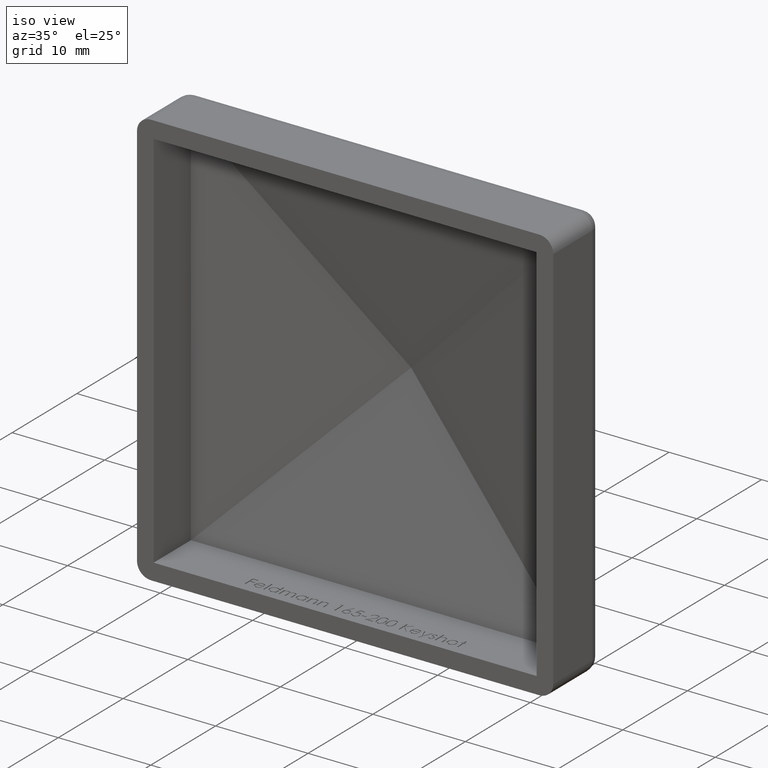
[diagram: clean part render]
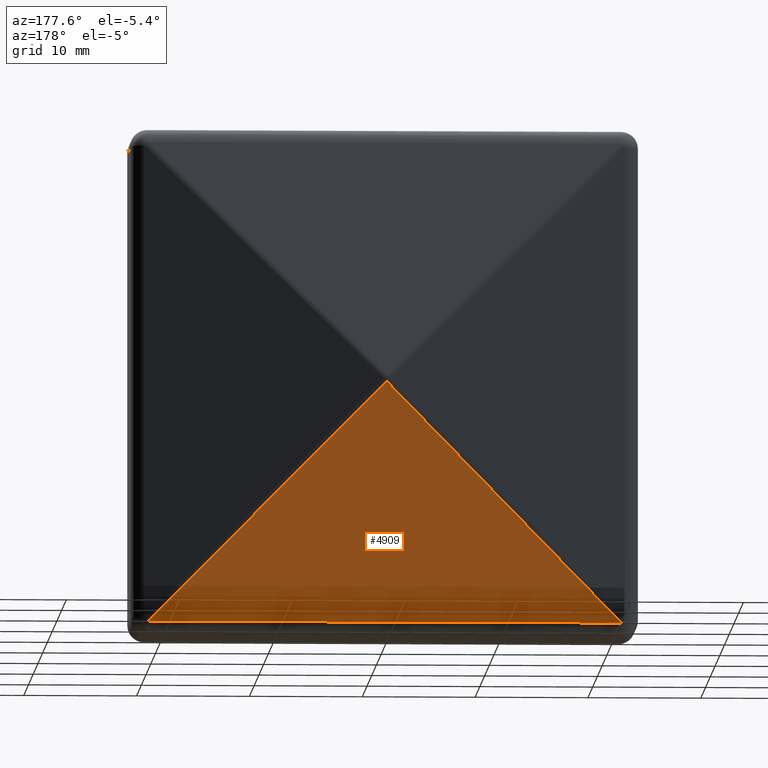
[diagram: tour spotlight — one face highlighted and labeled with its STEP entity id]
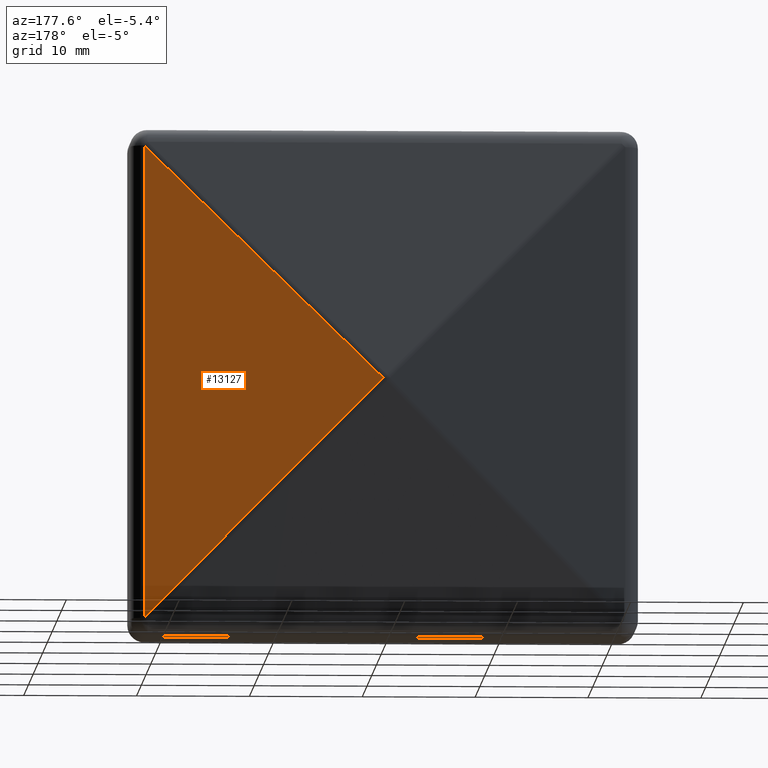
[diagram: tour spotlight — one face highlighted and labeled with its STEP entity id]
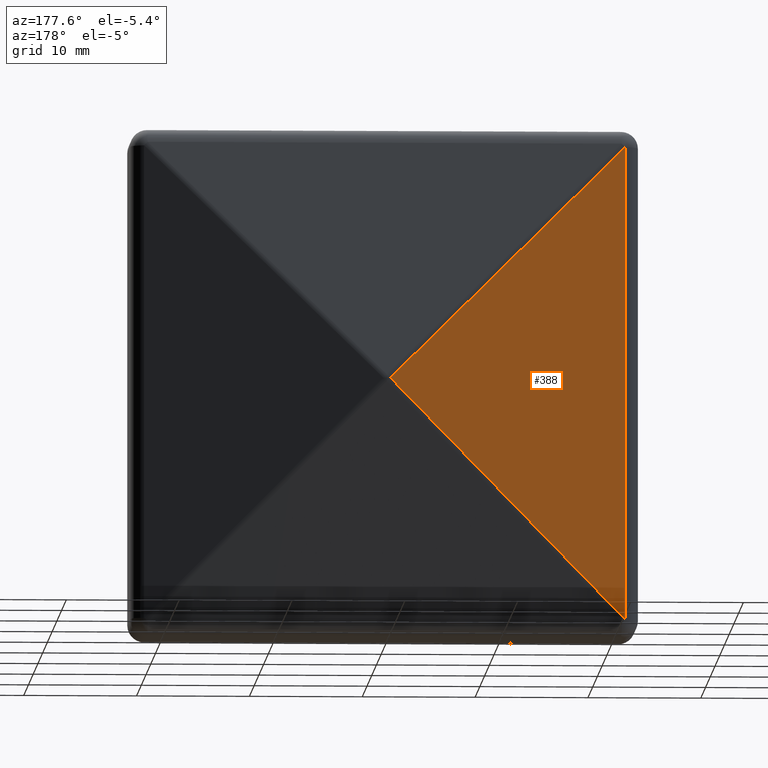
[diagram: tour spotlight — one face highlighted and labeled with its STEP entity id]
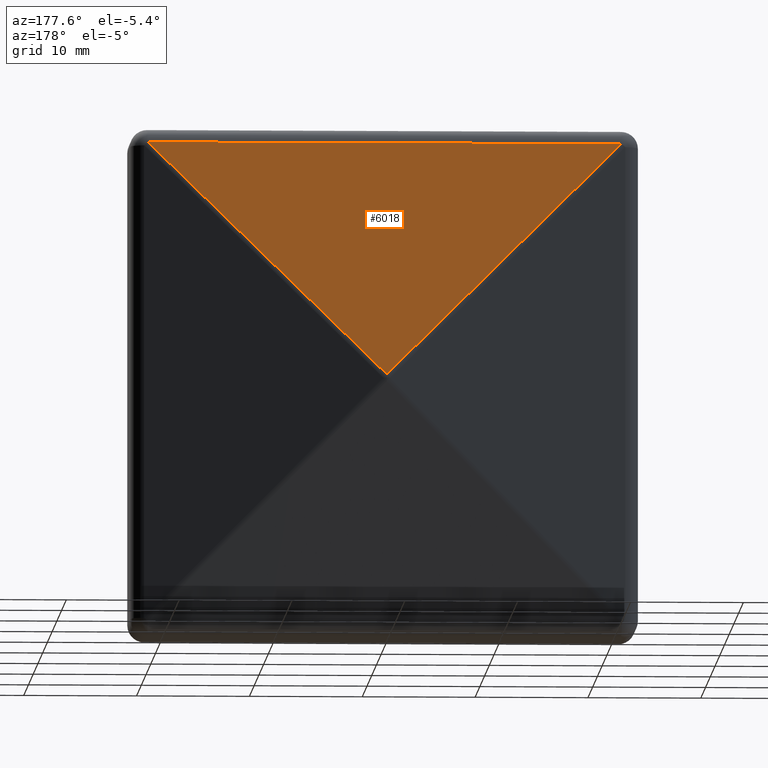
[diagram: tour spotlight — one face highlighted and labeled with its STEP entity id]
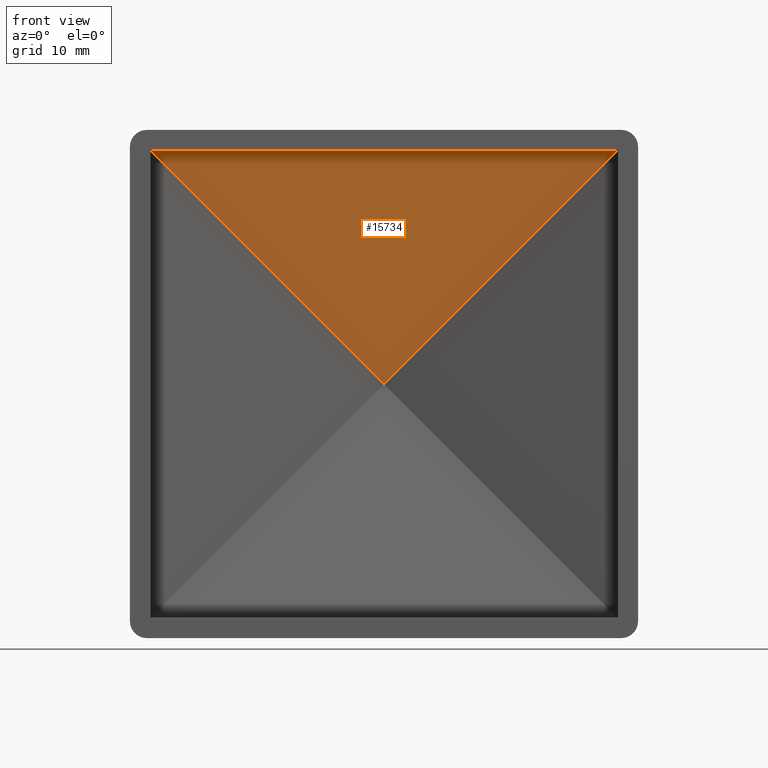
[diagram: tour spotlight — one face highlighted and labeled with its STEP entity id]
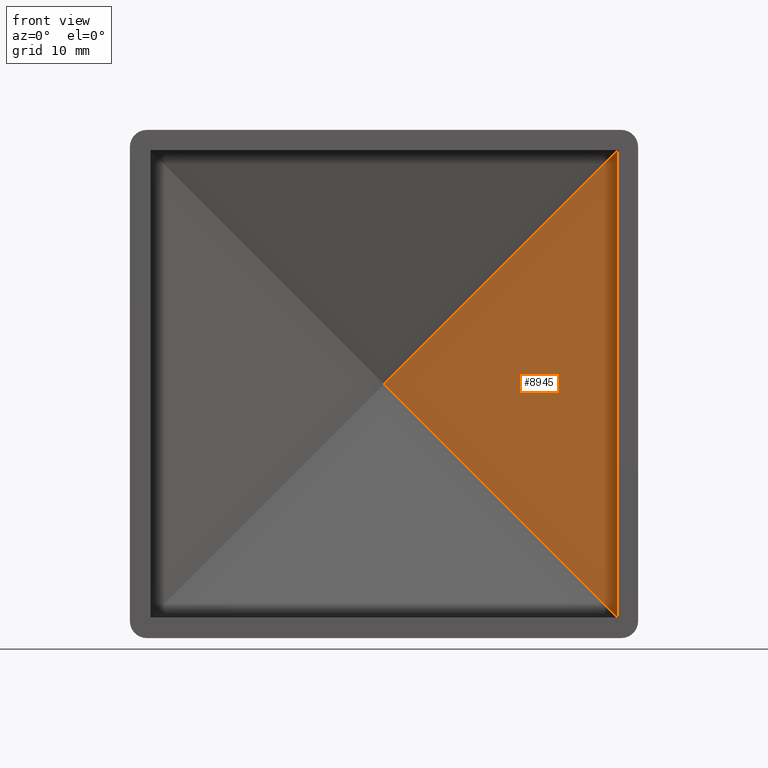
[diagram: tour spotlight — one face highlighted and labeled with its STEP entity id]
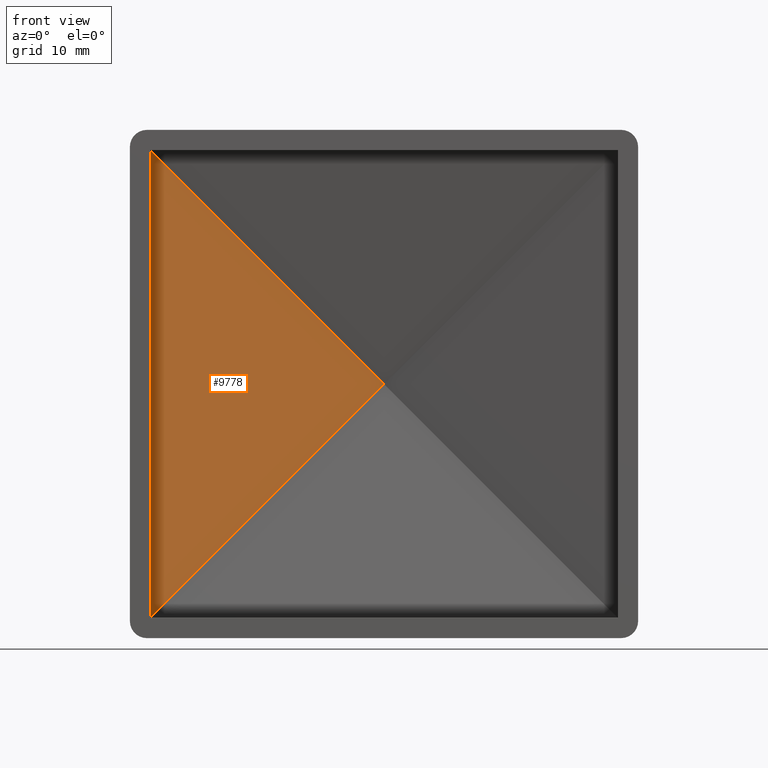
[diagram: tour spotlight — one face highlighted and labeled with its STEP entity id]
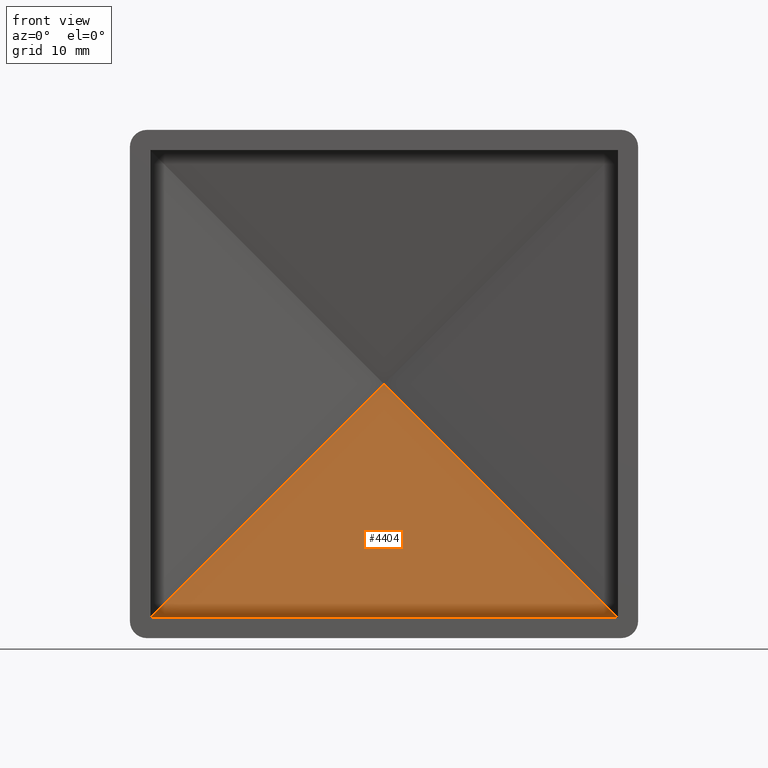
[diagram: tour spotlight — one face highlighted and labeled with its STEP entity id]
A machine part: a face-by-face anatomy tour. The part has 322 B-rep faces; the first image is the clean iso view, then the 8 largest visible faces are spotlighted one at a time (largest first), each with its STEP entity span.

Face 1 — auxiliary view, entity #4909. In plain terms, the highlighted planar face has unit normal (-0, 0.9778, -0.2095).
Definition (entity closure, byte-faithful):
#290 = VERTEX_POINT ( 'NONE', #12041 ) ;
#1507 = ORIENTED_EDGE ( 'NONE', *, *, #2637, .T. ) ;
#1525 = CARTESIAN_POINT ( 'NONE',  ( 9.897755610972566800, 14.08765125203881000, 9.583461977876254400 ) ) ;
#2637 = EDGE_CURVE ( 'NONE', #13440, #8784, #9553, .T. ) ;
#2821 = DIRECTION ( 'NONE',  ( -1.000000000000000000, -0.0000000000000000000, 2.220446049250313100E-016 ) ) ;
#3248 = AXIS2_PLACEMENT_3D ( 'NONE', #10526, #5503, #6842 ) ;
#3952 = VECTOR ( 'NONE', #9826, 1000.000000000000100 ) ;
#4052 = FACE_OUTER_BOUND ( 'NONE', #15610, .T. ) ;
#4506 = ORIENTED_EDGE ( 'NONE', *, *, #5343, .T. ) ;
#4909 = ADVANCED_FACE ( 'NONE', ( #4052 ), #15564, .T. ) ;
#5343 = EDGE_CURVE ( 'NONE', #290, #13440, #16321, .T. ) ;
#5503 = DIRECTION ( 'NONE',  ( -4.652480372754863700E-017, 0.9778024140774096400, -0.2095290887308734800 ) ) ;
#5961 = VECTOR ( 'NONE', #2821, 1000.000000000000000 ) ;
#6385 = CARTESIAN_POINT ( 'NONE',  ( 20.99999999999998900, 7.466703621116119300, -21.31429363309631200 ) ) ;
#6842 = DIRECTION ( 'NONE',  ( 0.0000000000000000000, 0.2095290887308734800, 0.9778024140774096400 ) ) ;
#7732 = DIRECTION ( 'NONE',  ( 0.6991266372144912000, 0.1498128508316767000, 0.6991266372144912000 ) ) ;
#8154 = VECTOR ( 'NONE', #7732, 1000.000000000000100 ) ;
#8784 = VERTEX_POINT ( 'NONE', #6385 ) ;
#8887 = CARTESIAN_POINT ( 'NONE',  ( 6.938893903907228400E-015, 11.96670362111611800, -0.3142936330963099800 ) ) ;
#9553 = LINE ( 'NONE', #16419, #3952 ) ;
#9826 = DIRECTION ( 'NONE',  ( 0.6991266372144909800, -0.1498128508316766700, -0.6991266372144914200 ) ) ;
#10419 = CARTESIAN_POINT ( 'NONE',  ( 22.49999999999999600, 7.466703621116119300, -21.31429363309631200 ) ) ;
#10526 = CARTESIAN_POINT ( 'NONE',  ( 22.50000000000000000, 11.50572801136002000, -2.465513145291437600 ) ) ;
#10811 = ORIENTED_EDGE ( 'NONE', *, *, #14017, .T. ) ;
#12041 = CARTESIAN_POINT ( 'NONE',  ( -20.99999999999997500, 7.466703621116119300, -21.31429363309630200 ) ) ;
#13440 = VERTEX_POINT ( 'NONE', #8887 ) ;
#14017 = EDGE_CURVE ( 'NONE', #8784, #290, #14758, .T. ) ;
#14758 = LINE ( 'NONE', #10419, #5961 ) ;
#15564 = PLANE ( 'NONE',  #3248 ) ;
#15610 = EDGE_LOOP ( 'NONE', ( #10811, #4506, #1507 ) ) ;
#16321 = LINE ( 'NONE', #1525, #8154 ) ;
#16419 = CARTESIAN_POINT ( 'NONE',  ( 21.15361983064058300, 7.433785085978849200, -21.46791346373691000 ) ) ;

Face 2 — auxiliary view, entity #13127. In plain terms, the highlighted planar face has unit normal (-0.2095, -0.9778, 0).
Definition (entity closure, byte-faithful):
#601 = CARTESIAN_POINT ( 'NONE',  ( 0.3142936330963099800, 11.96670362111611800, -3.469446951953614200E-015 ) ) ;
#1054 = DIRECTION ( 'NONE',  ( 0.6991266372144912000, -0.1498128508316767000, 0.6991266372144912000 ) ) ;
#1366 = ORIENTED_EDGE ( 'NONE', *, *, #2317, .T. ) ;
#1699 = EDGE_CURVE ( 'NONE', #14411, #10346, #3817, .T. ) ;
#2004 = EDGE_CURVE ( 'NONE', #2891, #10346, #10600, .T. ) ;
#2317 = EDGE_CURVE ( 'NONE', #14411, #2891, #12780, .T. ) ;
#2891 = VERTEX_POINT ( 'NONE', #601 ) ;
#3064 = CARTESIAN_POINT ( 'NONE',  ( 21.31429363309630900, 7.466703621116119300, -22.50000000000003600 ) ) ;
#3634 = DIRECTION ( 'NONE',  ( -0.6991266372144910900, 0.1498128508316766700, 0.6991266372144914200 ) ) ;
#3817 = LINE ( 'NONE', #3064, #13826 ) ;
#4016 = CARTESIAN_POINT ( 'NONE',  ( 21.31429363309630900, 7.466703621116119300, 20.99999999999999600 ) ) ;
#4584 = AXIS2_PLACEMENT_3D ( 'NONE', #4721, #11138, #13495 ) ;
#4721 = CARTESIAN_POINT ( 'NONE',  ( 2.465513145291432300, 11.50572801136002000, -22.50000000000003600 ) ) ;
#5318 = CARTESIAN_POINT ( 'NONE',  ( 21.31429363309630900, 7.466703621116119300, -21.00000000000000400 ) ) ;
#5804 = ORIENTED_EDGE ( 'NONE', *, *, #2004, .T. ) ;
#6072 = EDGE_LOOP ( 'NONE', ( #1366, #5804, #8551 ) ) ;
#6371 = VECTOR ( 'NONE', #3634, 1000.000000000000100 ) ;
#7295 = PLANE ( 'NONE',  #4584 ) ;
#8190 = FACE_OUTER_BOUND ( 'NONE', #6072, .T. ) ;
#8418 = VECTOR ( 'NONE', #1054, 1000.000000000000100 ) ;
#8551 = ORIENTED_EDGE ( 'NONE', *, *, #1699, .F. ) ;
#8565 = CARTESIAN_POINT ( 'NONE',  ( 0.4679134637369022900, 11.93378508597884700, -0.1536198306405986400 ) ) ;
#10346 = VERTEX_POINT ( 'NONE', #4016 ) ;
#10600 = LINE ( 'NONE', #15217, #8418 ) ;
#11138 = DIRECTION ( 'NONE',  ( -0.2095290887308734800, -0.9778024140774095300, 0.0000000000000000000 ) ) ;
#12780 = LINE ( 'NONE', #8565, #6371 ) ;
#13127 = ADVANCED_FACE ( 'NONE', ( #8190 ), #7295, .F. ) ;
#13495 = DIRECTION ( 'NONE',  ( 0.9778024140774095300, -0.2095290887308734800, 0.0000000000000000000 ) ) ;
#13826 = VECTOR ( 'NONE', #15857, 1000.000000000000000 ) ;
#14411 = VERTEX_POINT ( 'NONE', #5318 ) ;
#15217 = CARTESIAN_POINT ( 'NONE',  ( -9.583461977876277500, 14.08765125203881600, -9.897755610972581100 ) ) ;
#15857 = DIRECTION ( 'NONE',  ( -0.0000000000000000000, -0.0000000000000000000, 1.000000000000000000 ) ) ;

Face 3 — auxiliary view, entity #388. In plain terms, the highlighted planar face has unit normal (-0.2095, 0.9778, 0).
Definition (entity closure, byte-faithful):
#183 = CARTESIAN_POINT ( 'NONE',  ( -21.31429363309630900, 7.466703621116119300, -20.99999999999999300 ) ) ;
#388 = ADVANCED_FACE ( 'NONE', ( #11070 ), #8625, .T. ) ;
#571 = VECTOR ( 'NONE', #4943, 1000.000000000000100 ) ;
#944 = DIRECTION ( 'NONE',  ( 0.6991266372144910900, 0.1498128508316766700, -0.6991266372144914200 ) ) ;
#996 = DIRECTION ( 'NONE',  ( -0.2095290887308734800, 0.9778024140774095300, 0.0000000000000000000 ) ) ;
#1764 = EDGE_LOOP ( 'NONE', ( #13207, #14803, #8807 ) ) ;
#4418 = CARTESIAN_POINT ( 'NONE',  ( -21.31429363309630900, 7.466703621116119300, 21.00000000000001100 ) ) ;
#4781 = DIRECTION ( 'NONE',  ( -0.9778024140774095300, -0.2095290887308734800, 0.0000000000000000000 ) ) ;
#4943 = DIRECTION ( 'NONE',  ( -0.6991266372144912000, -0.1498128508316767000, -0.6991266372144912000 ) ) ;
#4958 = CARTESIAN_POINT ( 'NONE',  ( -0.4679134637368916900, 11.93378508597885100, 0.1536198306405969200 ) ) ;
#5591 = CARTESIAN_POINT ( 'NONE',  ( -0.3142936330963099800, 11.96670362111611800, 1.040834085586084300E-014 ) ) ;
#6112 = CARTESIAN_POINT ( 'NONE',  ( -12.41155049095168500, 9.374434294432822100, -12.09725685785538300 ) ) ;
#6380 = LINE ( 'NONE', #6112, #571 ) ;
#6816 = VERTEX_POINT ( 'NONE', #4418 ) ;
#6844 = AXIS2_PLACEMENT_3D ( 'NONE', #15033, #996, #4781 ) ;
#8625 = PLANE ( 'NONE',  #6844 ) ;
#8807 = ORIENTED_EDGE ( 'NONE', *, *, #8844, .T. ) ;
#8844 = EDGE_CURVE ( 'NONE', #14050, #6816, #15200, .T. ) ;
#10509 = DIRECTION ( 'NONE',  ( -0.0000000000000000000, -0.0000000000000000000, 1.000000000000000000 ) ) ;
#11070 = FACE_OUTER_BOUND ( 'NONE', #1764, .T. ) ;
#12810 = VECTOR ( 'NONE', #10509, 1000.000000000000000 ) ;
#12919 = CARTESIAN_POINT ( 'NONE',  ( -21.31429363309630900, 7.466703621116119300, -22.50000000000003600 ) ) ;
#13207 = ORIENTED_EDGE ( 'NONE', *, *, #15794, .T. ) ;
#13269 = EDGE_CURVE ( 'NONE', #13674, #14050, #6380, .T. ) ;
#13674 = VERTEX_POINT ( 'NONE', #5591 ) ;
#14050 = VERTEX_POINT ( 'NONE', #183 ) ;
#14803 = ORIENTED_EDGE ( 'NONE', *, *, #13269, .T. ) ;
#15033 = CARTESIAN_POINT ( 'NONE',  ( -2.465513145291432300, 11.50572801136002000, -22.50000000000003600 ) ) ;
#15200 = LINE ( 'NONE', #12919, #12810 ) ;
#15536 = VECTOR ( 'NONE', #944, 1000.000000000000100 ) ;
#15794 = EDGE_CURVE ( 'NONE', #6816, #13674, #16327, .T. ) ;
#16327 = LINE ( 'NONE', #4958, #15536 ) ;

Face 4 — auxiliary view, entity #6018. In plain terms, the highlighted planar face has unit normal (-0, -0.9778, -0.2095).
Definition (entity closure, byte-faithful):
#42 = EDGE_CURVE ( 'NONE', #7215, #4459, #11495, .T. ) ;
#430 = DIRECTION ( 'NONE',  ( -0.6991266372144909800, -0.1498128508316766700, 0.6991266372144914200 ) ) ;
#777 = CARTESIAN_POINT ( 'NONE',  ( 22.50000000000000000, 11.50572801136002000, 2.465513145291427400 ) ) ;
#892 = PLANE ( 'NONE',  #1312 ) ;
#1094 = EDGE_CURVE ( 'NONE', #7215, #6229, #13067, .T. ) ;
#1312 = AXIS2_PLACEMENT_3D ( 'NONE', #777, #4750, #13678 ) ;
#1845 = CARTESIAN_POINT ( 'NONE',  ( -21.15361983064056200, 7.433785085978851900, 21.46791346373689500 ) ) ;
#2516 = EDGE_LOOP ( 'NONE', ( #2724, #14309, #8289 ) ) ;
#2724 = ORIENTED_EDGE ( 'NONE', *, *, #42, .T. ) ;
#2779 = DIRECTION ( 'NONE',  ( -0.6991266372144912000, 0.1498128508316767000, -0.6991266372144912000 ) ) ;
#3685 = EDGE_CURVE ( 'NONE', #4459, #6229, #12246, .T. ) ;
#4459 = VERTEX_POINT ( 'NONE', #11632 ) ;
#4750 = DIRECTION ( 'NONE',  ( -4.652480372754863700E-017, -0.9778024140774096400, -0.2095290887308734800 ) ) ;
#5293 = VECTOR ( 'NONE', #7694, 1000.000000000000000 ) ;
#6018 = ADVANCED_FACE ( 'NONE', ( #7643 ), #892, .F. ) ;
#6202 = CARTESIAN_POINT ( 'NONE',  ( 20.99999999999998900, 7.466703621116119300, 21.31429363309630500 ) ) ;
#6229 = VERTEX_POINT ( 'NONE', #11656 ) ;
#6708 = VECTOR ( 'NONE', #2779, 1000.000000000000100 ) ;
#7051 = VECTOR ( 'NONE', #430, 1000.000000000000100 ) ;
#7215 = VERTEX_POINT ( 'NONE', #6202 ) ;
#7643 = FACE_OUTER_BOUND ( 'NONE', #2516, .T. ) ;
#7694 = DIRECTION ( 'NONE',  ( -1.000000000000000000, -0.0000000000000000000, 2.220446049250313100E-016 ) ) ;
#7864 = CARTESIAN_POINT ( 'NONE',  ( 22.50000000000000400, 7.466703621116119300, 21.31429363309630500 ) ) ;
#8289 = ORIENTED_EDGE ( 'NONE', *, *, #1094, .F. ) ;
#11495 = LINE ( 'NONE', #15107, #6708 ) ;
#11632 = CARTESIAN_POINT ( 'NONE',  ( 3.469446951953614200E-015, 11.96670362111611800, 0.3142936330963099800 ) ) ;
#11656 = CARTESIAN_POINT ( 'NONE',  ( -20.99999999999997500, 7.466703621116119300, 21.31429363309631600 ) ) ;
#12246 = LINE ( 'NONE', #1845, #7051 ) ;
#13067 = LINE ( 'NONE', #7864, #5293 ) ;
#13678 = DIRECTION ( 'NONE',  ( 0.0000000000000000000, 0.2095290887308734800, -0.9778024140774096400 ) ) ;
#14309 = ORIENTED_EDGE ( 'NONE', *, *, #3685, .T. ) ;
#15107 = CARTESIAN_POINT ( 'NONE',  ( 12.09725685785535300, 9.374434294432823800, 12.41155049095167400 ) ) ;

Face 5 — front view, entity #15734. In plain terms, the highlighted planar face has unit normal (-0, -0.9778, -0.2095).
Definition (entity closure, byte-faithful):
#40 = ORIENTED_EDGE ( 'NONE', *, *, #11669, .T. ) ;
#274 = EDGE_CURVE ( 'NONE', #5621, #15442, #13892, .T. ) ;
#1110 = EDGE_LOOP ( 'NONE', ( #14321, #40, #1483 ) ) ;
#1415 = DIRECTION ( 'NONE',  ( 0.6991266372144912000, -0.1498128508316766700, 0.6991266372144912000 ) ) ;
#1483 = ORIENTED_EDGE ( 'NONE', *, *, #274, .T. ) ;
#2434 = LINE ( 'NONE', #12690, #13011 ) ;
#3287 = PLANE ( 'NONE',  #15197 ) ;
#3534 = CARTESIAN_POINT ( 'NONE',  ( 0.0000000000000000000, 10.19318954864408300, 0.0000000000000000000 ) ) ;
#3563 = DIRECTION ( 'NONE',  ( -4.652480372754863700E-017, -0.9778024140774096400, -0.2095290887308734800 ) ) ;
#4025 = DIRECTION ( 'NONE',  ( -0.6991266372144909800, -0.1498128508316766700, 0.6991266372144914200 ) ) ;
#4309 = VERTEX_POINT ( 'NONE', #3534 ) ;
#4903 = VECTOR ( 'NONE', #14772, 1000.000000000000000 ) ;
#5621 = VERTEX_POINT ( 'NONE', #7322 ) ;
#7322 = CARTESIAN_POINT ( 'NONE',  ( 20.69999999999998200, 5.757475262929799200, 20.69999999999998900 ) ) ;
#7399 = CARTESIAN_POINT ( 'NONE',  ( -20.69999999999998200, 5.757475262929799200, 20.70000000000000300 ) ) ;
#7781 = LINE ( 'NONE', #7783, #12570 ) ;
#7783 = CARTESIAN_POINT ( 'NONE',  ( -9.929890371463733000, 12.32102319967202500, -9.929890371463724100 ) ) ;
#8855 = EDGE_CURVE ( 'NONE', #4309, #15442, #2434, .T. ) ;
#10343 = FACE_OUTER_BOUND ( 'NONE', #1110, .T. ) ;
#11205 = DIRECTION ( 'NONE',  ( 0.0000000000000000000, 0.2095290887308734800, -0.9778024140774096400 ) ) ;
#11255 = CARTESIAN_POINT ( 'NONE',  ( 22.50000000000000000, 9.745683666020685400, 2.088360785575855200 ) ) ;
#11669 = EDGE_CURVE ( 'NONE', #4309, #5621, #7781, .T. ) ;
#12570 = VECTOR ( 'NONE', #1415, 1000.000000000000100 ) ;
#12690 = CARTESIAN_POINT ( 'NONE',  ( 9.929890371463731200, 12.32102319967202500, -9.929890371463731200 ) ) ;
#13011 = VECTOR ( 'NONE', #4025, 1000.000000000000100 ) ;
#13334 = CARTESIAN_POINT ( 'NONE',  ( -22.50000000000000700, 5.757475262929804500, 20.69999999999997800 ) ) ;
#13892 = LINE ( 'NONE', #13334, #4903 ) ;
#14321 = ORIENTED_EDGE ( 'NONE', *, *, #8855, .F. ) ;
#14772 = DIRECTION ( 'NONE',  ( -1.000000000000000000, 4.758098676964957000E-017, 0.0000000000000000000 ) ) ;
#15197 = AXIS2_PLACEMENT_3D ( 'NONE', #11255, #3563, #11205 ) ;
#15442 = VERTEX_POINT ( 'NONE', #7399 ) ;
#15734 = ADVANCED_FACE ( 'NONE', ( #10343 ), #3287, .T. ) ;

Face 6 — front view, entity #8945. In plain terms, the highlighted planar face has unit normal (-0.2095, -0.9778, 0).
Definition (entity closure, byte-faithful):
#1415 = DIRECTION ( 'NONE',  ( 0.6991266372144912000, -0.1498128508316766700, 0.6991266372144912000 ) ) ;
#2024 = FACE_OUTER_BOUND ( 'NONE', #7291, .T. ) ;
#3534 = CARTESIAN_POINT ( 'NONE',  ( 0.0000000000000000000, 10.19318954864408300, 0.0000000000000000000 ) ) ;
#3671 = ORIENTED_EDGE ( 'NONE', *, *, #11040, .T. ) ;
#3901 = CARTESIAN_POINT ( 'NONE',  ( 20.70000000000000300, 5.757475262929793800, -20.70000000000002400 ) ) ;
#4309 = VERTEX_POINT ( 'NONE', #3534 ) ;
#5548 = VECTOR ( 'NONE', #14673, 1000.000000000000100 ) ;
#5590 = VECTOR ( 'NONE', #15237, 1000.000000000000000 ) ;
#5621 = VERTEX_POINT ( 'NONE', #7322 ) ;
#5737 = VERTEX_POINT ( 'NONE', #3901 ) ;
#6719 = ORIENTED_EDGE ( 'NONE', *, *, #11669, .F. ) ;
#6770 = CARTESIAN_POINT ( 'NONE',  ( 2.088360785575860100, 9.745683666020683600, -22.50000000000003600 ) ) ;
#7291 = EDGE_LOOP ( 'NONE', ( #10487, #3671, #6719 ) ) ;
#7322 = CARTESIAN_POINT ( 'NONE',  ( 20.69999999999998200, 5.757475262929799200, 20.69999999999998900 ) ) ;
#7781 = LINE ( 'NONE', #7783, #12570 ) ;
#7783 = CARTESIAN_POINT ( 'NONE',  ( -9.929890371463733000, 12.32102319967202500, -9.929890371463724100 ) ) ;
#8203 = LINE ( 'NONE', #14197, #5590 ) ;
#8945 = ADVANCED_FACE ( 'NONE', ( #2024 ), #14424, .T. ) ;
#10487 = ORIENTED_EDGE ( 'NONE', *, *, #14963, .T. ) ;
#10666 = DIRECTION ( 'NONE',  ( 0.9778024140774095300, -0.2095290887308734800, 0.0000000000000000000 ) ) ;
#10818 = CARTESIAN_POINT ( 'NONE',  ( 12.06512209736422900, 7.607806242066032200, -12.06512209736424700 ) ) ;
#11040 = EDGE_CURVE ( 'NONE', #5737, #5621, #8203, .T. ) ;
#11669 = EDGE_CURVE ( 'NONE', #4309, #5621, #7781, .T. ) ;
#11956 = DIRECTION ( 'NONE',  ( -0.2095290887308734800, -0.9778024140774095300, 0.0000000000000000000 ) ) ;
#12570 = VECTOR ( 'NONE', #1415, 1000.000000000000100 ) ;
#14197 = CARTESIAN_POINT ( 'NONE',  ( 20.69999999999999200, 5.757475262929797400, -22.50000000000003600 ) ) ;
#14424 = PLANE ( 'NONE',  #15504 ) ;
#14673 = DIRECTION ( 'NONE',  ( 0.6991266372144909800, -0.1498128508316766700, -0.6991266372144914200 ) ) ;
#14963 = EDGE_CURVE ( 'NONE', #4309, #5737, #15552, .T. ) ;
#15237 = DIRECTION ( 'NONE',  ( 0.0000000000000000000, 0.0000000000000000000, 1.000000000000000000 ) ) ;
#15504 = AXIS2_PLACEMENT_3D ( 'NONE', #6770, #11956, #10666 ) ;
#15552 = LINE ( 'NONE', #10818, #5548 ) ;

Face 7 — front view, entity #9778. In plain terms, the highlighted planar face has unit normal (-0.2095, 0.9778, 0).
Definition (entity closure, byte-faithful):
#531 = VERTEX_POINT ( 'NONE', #13689 ) ;
#938 = PLANE ( 'NONE',  #13792 ) ;
#1674 = VECTOR ( 'NONE', #15891, 1000.000000000000000 ) ;
#2434 = LINE ( 'NONE', #12690, #13011 ) ;
#3051 = VECTOR ( 'NONE', #15905, 1000.000000000000100 ) ;
#3534 = CARTESIAN_POINT ( 'NONE',  ( 0.0000000000000000000, 10.19318954864408300, 0.0000000000000000000 ) ) ;
#4025 = DIRECTION ( 'NONE',  ( -0.6991266372144909800, -0.1498128508316766700, 0.6991266372144914200 ) ) ;
#4309 = VERTEX_POINT ( 'NONE', #3534 ) ;
#4966 = EDGE_CURVE ( 'NONE', #531, #15442, #10262, .T. ) ;
#6677 = ORIENTED_EDGE ( 'NONE', *, *, #4966, .F. ) ;
#7142 = DIRECTION ( 'NONE',  ( -0.2095290887308734800, 0.9778024140774095300, 0.0000000000000000000 ) ) ;
#7399 = CARTESIAN_POINT ( 'NONE',  ( -20.69999999999998200, 5.757475262929799200, 20.70000000000000300 ) ) ;
#7404 = EDGE_CURVE ( 'NONE', #4309, #531, #12037, .T. ) ;
#8468 = DIRECTION ( 'NONE',  ( -0.9778024140774095300, -0.2095290887308734800, 0.0000000000000000000 ) ) ;
#8855 = EDGE_CURVE ( 'NONE', #4309, #15442, #2434, .T. ) ;
#8904 = EDGE_LOOP ( 'NONE', ( #16479, #6677, #15614 ) ) ;
#9195 = CARTESIAN_POINT ( 'NONE',  ( -12.06512209736423100, 7.607806242066032200, -12.06512209736424000 ) ) ;
#9778 = ADVANCED_FACE ( 'NONE', ( #14609 ), #938, .F. ) ;
#10262 = LINE ( 'NONE', #14336, #1674 ) ;
#11144 = CARTESIAN_POINT ( 'NONE',  ( -2.088360785575860100, 9.745683666020683600, -22.50000000000003600 ) ) ;
#12037 = LINE ( 'NONE', #9195, #3051 ) ;
#12690 = CARTESIAN_POINT ( 'NONE',  ( 9.929890371463731200, 12.32102319967202500, -9.929890371463731200 ) ) ;
#13011 = VECTOR ( 'NONE', #4025, 1000.000000000000100 ) ;
#13689 = CARTESIAN_POINT ( 'NONE',  ( -20.70000000000000300, 5.757475262929794700, -20.70000000000001000 ) ) ;
#13792 = AXIS2_PLACEMENT_3D ( 'NONE', #11144, #7142, #8468 ) ;
#14336 = CARTESIAN_POINT ( 'NONE',  ( -20.69999999999997800, 5.757475262929800100, -22.50000000000003600 ) ) ;
#14609 = FACE_OUTER_BOUND ( 'NONE', #8904, .T. ) ;
#15442 = VERTEX_POINT ( 'NONE', #7399 ) ;
#15614 = ORIENTED_EDGE ( 'NONE', *, *, #7404, .F. ) ;
#15891 = DIRECTION ( 'NONE',  ( -6.167905692361979600E-016, -1.321694076934709900E-016, 1.000000000000000000 ) ) ;
#15905 = DIRECTION ( 'NONE',  ( -0.6991266372144912000, -0.1498128508316766700, -0.6991266372144912000 ) ) ;
#16479 = ORIENTED_EDGE ( 'NONE', *, *, #8855, .T. ) ;

Face 8 — front view, entity #4404. In plain terms, the highlighted planar face has unit normal (-0, 0.9778, -0.2095).
Definition (entity closure, byte-faithful):
#531 = VERTEX_POINT ( 'NONE', #13689 ) ;
#719 = EDGE_LOOP ( 'NONE', ( #802, #12932, #6101 ) ) ;
#802 = ORIENTED_EDGE ( 'NONE', *, *, #7404, .T. ) ;
#3036 = VECTOR ( 'NONE', #8612, 1000.000000000000000 ) ;
#3051 = VECTOR ( 'NONE', #15905, 1000.000000000000100 ) ;
#3534 = CARTESIAN_POINT ( 'NONE',  ( 0.0000000000000000000, 10.19318954864408300, 0.0000000000000000000 ) ) ;
#3901 = CARTESIAN_POINT ( 'NONE',  ( 20.70000000000000300, 5.757475262929793800, -20.70000000000002400 ) ) ;
#4309 = VERTEX_POINT ( 'NONE', #3534 ) ;
#4404 = ADVANCED_FACE ( 'NONE', ( #8488 ), #16268, .F. ) ;
#5159 = AXIS2_PLACEMENT_3D ( 'NONE', #9116, #8833, #10411 ) ;
#5548 = VECTOR ( 'NONE', #14673, 1000.000000000000100 ) ;
#5737 = VERTEX_POINT ( 'NONE', #3901 ) ;
#6042 = CARTESIAN_POINT ( 'NONE',  ( -22.49999999999997900, 5.757475262929789400, -20.70000000000003500 ) ) ;
#6101 = ORIENTED_EDGE ( 'NONE', *, *, #14963, .F. ) ;
#7404 = EDGE_CURVE ( 'NONE', #4309, #531, #12037, .T. ) ;
#8227 = EDGE_CURVE ( 'NONE', #5737, #531, #14028, .T. ) ;
#8488 = FACE_OUTER_BOUND ( 'NONE', #719, .T. ) ;
#8612 = DIRECTION ( 'NONE',  ( -1.000000000000000000, -4.758098676964957000E-017, 0.0000000000000000000 ) ) ;
#8833 = DIRECTION ( 'NONE',  ( -4.652480372754863700E-017, 0.9778024140774096400, -0.2095290887308734800 ) ) ;
#9116 = CARTESIAN_POINT ( 'NONE',  ( 22.50000000000000000, 9.745683666020685400, -2.088360785575865500 ) ) ;
#9195 = CARTESIAN_POINT ( 'NONE',  ( -12.06512209736423100, 7.607806242066032200, -12.06512209736424000 ) ) ;
#10411 = DIRECTION ( 'NONE',  ( 0.0000000000000000000, 0.2095290887308734800, 0.9778024140774096400 ) ) ;
#10818 = CARTESIAN_POINT ( 'NONE',  ( 12.06512209736422900, 7.607806242066032200, -12.06512209736424700 ) ) ;
#12037 = LINE ( 'NONE', #9195, #3051 ) ;
#12932 = ORIENTED_EDGE ( 'NONE', *, *, #8227, .F. ) ;
#13689 = CARTESIAN_POINT ( 'NONE',  ( -20.70000000000000300, 5.757475262929794700, -20.70000000000001000 ) ) ;
#14028 = LINE ( 'NONE', #6042, #3036 ) ;
#14673 = DIRECTION ( 'NONE',  ( 0.6991266372144909800, -0.1498128508316766700, -0.6991266372144914200 ) ) ;
#14963 = EDGE_CURVE ( 'NONE', #4309, #5737, #15552, .T. ) ;
#15552 = LINE ( 'NONE', #10818, #5548 ) ;
#15905 = DIRECTION ( 'NONE',  ( -0.6991266372144912000, -0.1498128508316766700, -0.6991266372144912000 ) ) ;
#16268 = PLANE ( 'NONE',  #5159 ) ;